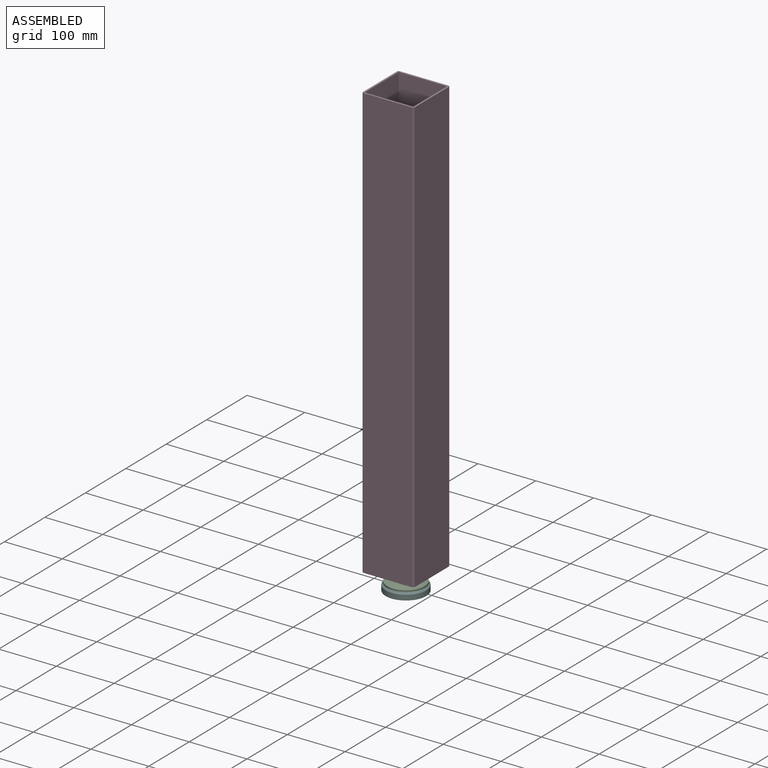
[diagram: assembled view]
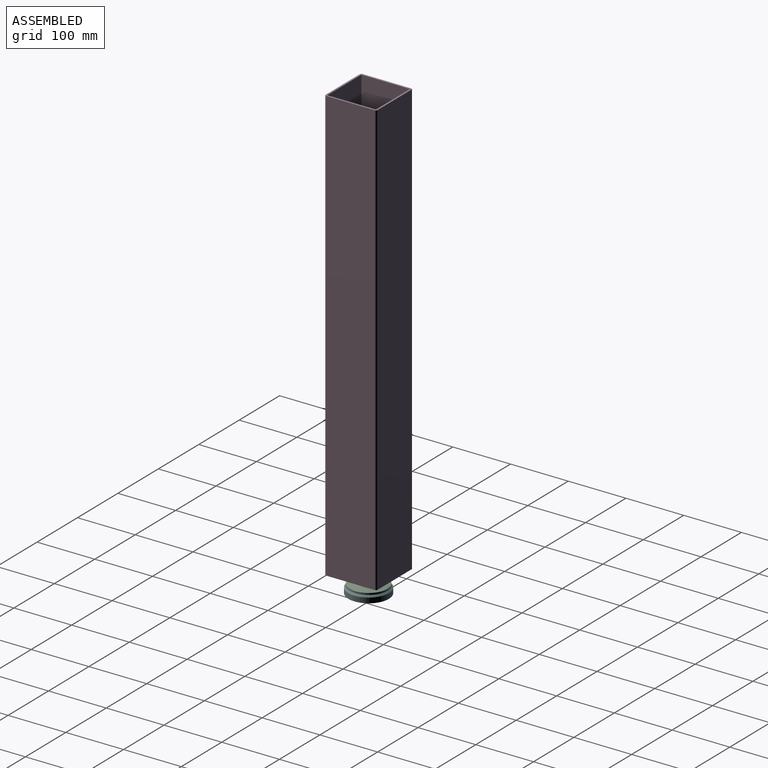
[diagram: assembled view, second angle]
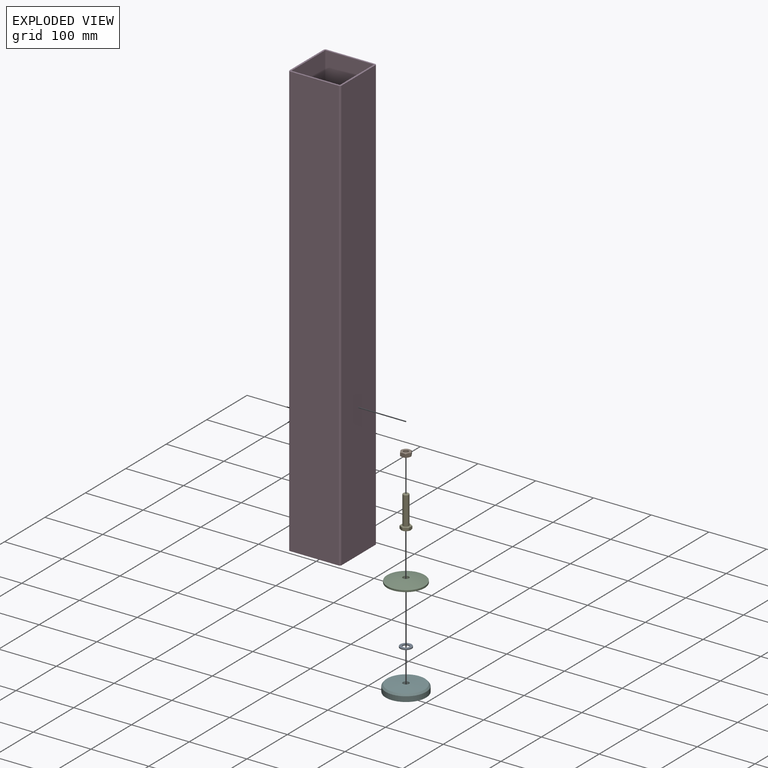
[diagram: exploded view]
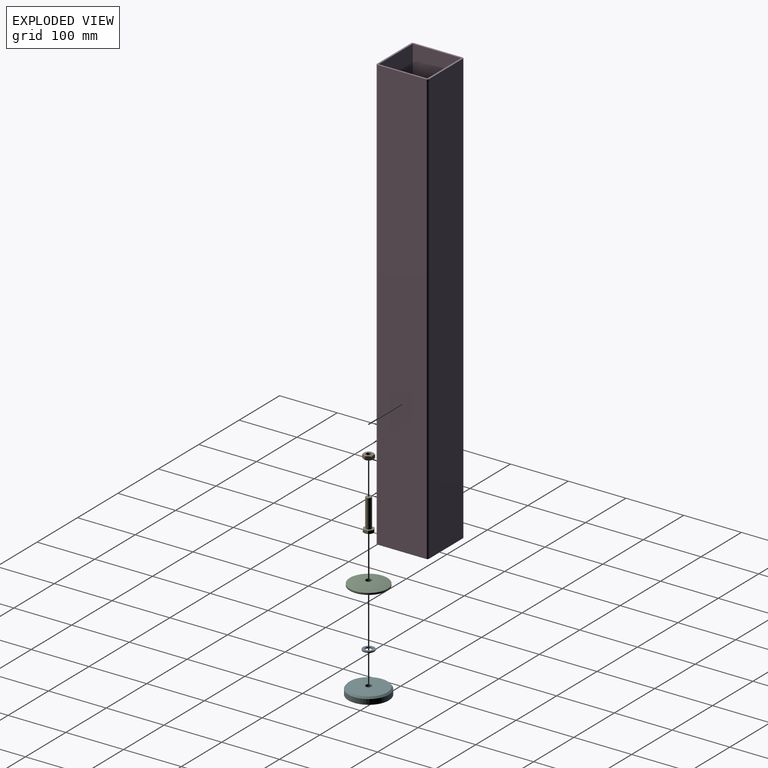
[diagram: exploded view, second angle]
ASSEMBLY  parts=6 mates=3
PART A: 4 faces, bbox 20x2x20 mm
  f0: plane 20x20mm, normal (0,-1,0), area 219.1mm2, adj f2,f3
  f1: plane 20x20mm, normal (0,1,0), area 219.1mm2, adj f2,f3
  f2: cylinder r=10mm len=20mm, axis (0,-1,0), area 125.7mm2, adj f0,f1
  f3: cylinder r=5.5mm len=11mm, axis (0,-1,0), area 69.1mm2, adj f0,f1
PART B: 13 faces, bbox 19.2x8.2x19.2 mm
  f0: cone r=7.3mm half-angle=60deg, axis (0,1,0), area 65mm2, adj f1,f2,f3,f4,f5,f6,f7
  f1: plane 14.6x14.6mm, normal (0,-1,0), area 88.9mm2, adj f0,f10
  f2: plane 8x6.6mm, normal (0.87,0,0.5), area 56.4mm2, adj f0,f3,f7,f8
  f3: plane 8x6.6mm, normal (0.87,0,-0.5), area 56.4mm2, adj f0,f2,f4,f8
  f4: plane 10.01x7.36mm, normal (0,0,-1), area 56.4mm2, adj f0,f3,f5,f8
  f5: plane 8x6.6mm, normal (-0.87,0,-0.5), area 56.4mm2, adj f0,f4,f6,f8
  f6: plane 8x6.6mm, normal (-0.87,0,0.5), area 56.4mm2, adj f0,f5,f7,f8
  f7: plane 10x7.36mm, normal (0,0,1), area 56.4mm2, adj f0,f2,f6,f8
  f8: cone r=9.24mm half-angle=60deg, axis (0,-1,0), area 65mm2, adj f2,f3,f4,f5,f6,f7,f9
  f9: plane 14.6x14.6mm, normal (0,1,0), area 88.9mm2, adj f8,f12
  f10: cone r=5mm half-angle=60deg, axis (0,-1,0), area 27.1mm2, adj f1,f11
  f11: cylinder r=4.19mm len=8.38mm, axis (0,-1,0), area 170.1mm2, adj f10,f12
  f12: cone r=4.19mm half-angle=60deg, axis (0,1,0), area 27.1mm2, adj f9,f11
PART C: 5 faces, bbox 65x65x8 mm
  f0: cone r=32.5mm half-angle=86.5deg, axis (0,0,-1), area 3237.8mm2, adj f1,f4
  f1: cylinder r=32.5mm len=65mm, axis (0,0,1), area 612.6mm2, adj f0,f3
  f2: plane 15x15mm, normal (0,0,1), area 90.1mm2, adj f3,f4
  f3: revolved ~65x65mm, area 3224.1mm2, adj f1,f2
  f4: cylinder r=5.25mm len=10.5mm, axis (0,0,-1), area 208.6mm2, adj f0,f2
PART D: 16 faces, bbox 90x90x751 mm
  f0: plane 90x90mm, normal (0,0,1), area 1036.3mm2, adj f1,f2,f3,f4,f6,f7,f8,f9
  f1: plane 751x84mm, normal (1,0,0), area 63084mm2, adj f0,f5,f6,f8
  f2: plane 751x84mm, normal (0,-1,0), area 63084mm2, adj f0,f5,f6,f7
  f3: plane 751x84mm, normal (-1,0,0), area 63084mm2, adj f0,f5,f7,f9
  f4: plane 751x84mm, normal (0,1,0), area 63084mm2, adj f0,f5,f8,f9
  f5: plane 90x90mm, normal (0,0,-1), area 8005.7mm2, adj f1,f2,f3,f4,f6,f7,f8,f9
  f6: cylinder r=3mm len=751mm, axis (0,0,1), area 3539mm2, adj f0,f1,f2,f5
  f7: cylinder r=3mm len=751mm, axis (0,0,-1), area 3539mm2, adj f0,f2,f3,f5
  f8: cylinder r=3mm len=751mm, axis (0,0,-1), area 3539mm2, adj f0,f1,f4,f5
  f9: cylinder r=3mm len=751mm, axis (0,0,1), area 3539mm2, adj f0,f3,f4,f5
  f10: plane 748x84mm, normal (-1,0,0), area 62832mm2, adj f0,f11,f13,f14
  f11: plane 748x84mm, normal (0,1,0), area 62832mm2, adj f0,f10,f12,f14
  f12: plane 748x84mm, normal (1,0,0), area 62832mm2, adj f0,f11,f13,f14
  f13: plane 748x84mm, normal (0,-1,0), area 62832mm2, adj f0,f10,f12,f14
  f14: plane 84x84mm, normal (0,0,1), area 6969.4mm2, adj f10,f11,f12,f13,f15
  f15: cylinder r=5.25mm len=10.5mm, axis (0,0,-1), area 99mm2, adj f5,f14
PART E: 20 faces, bbox 18.5x55.4x18.5 mm
  f0: cylinder r=5mm len=48.79mm, axis (0,1,0), area 1532.7mm2, adj f1,f19
  f1: torus R=5.4mm, axis (0,1,0), area 20.3mm2, adj f0,f2
  f2: plane 14.63x14.63mm, normal (0,-1,0), area 76.5mm2, adj f1,f3
  f3: cylinder r=7.32mm len=14.63mm, axis (0,1,0), area 6.9mm2, adj f2,f4
  f4: plane 18.48x16mm, normal (0,-1,0), area 53.6mm2, adj f3,f12,f13,f14,f15,f16,f17
  f5: cone r=9.24mm half-angle=60deg, axis (0,-1,0), area 4mm2, adj f10,f12,f13
  f6: cone r=9.24mm half-angle=60deg, axis (0,-1,0), area 4mm2, adj f10,f16,f17
  f7: cone r=9.24mm half-angle=60deg, axis (0,-1,0), area 4mm2, adj f10,f15,f16
  f8: cone r=9.24mm half-angle=60deg, axis (0,-1,0), area 4mm2, adj f10,f14,f15
  f9: cone r=9.24mm half-angle=60deg, axis (0,-1,0), area 4mm2, adj f10,f13,f14
  f10: plane 16x16mm, normal (0,1,0), area 201.1mm2, adj f5,f6,f7,f8,f9,f11
  f11: cone r=9.24mm half-angle=60deg, axis (0,-1,0), area 4mm2, adj f10,f12,f17
  f12: plane 8x5.25mm, normal (0.5,0,-0.87), area 46.2mm2, adj f4,f5,f11,f13,f17
  f13: plane 8x5.25mm, normal (-0.5,0,-0.87), area 46.2mm2, adj f4,f5,f9,f12,f14
  f14: plane 9.24x5.25mm, normal (-1,0,0), area 46.2mm2, adj f4,f8,f9,f13,f15
  f15: plane 8x5.25mm, normal (-0.5,0,0.87), area 46.2mm2, adj f4,f7,f8,f14,f16
  f16: plane 8x5.25mm, normal (0.5,0,0.87), area 46.2mm2, adj f4,f6,f7,f15,f17
  f17: plane 9.24x5.25mm, normal (1,0,0), area 46.2mm2, adj f4,f6,f11,f12,f16
  f18: plane 8.38x8.38mm, normal (0,-1,0), area 55.1mm2, adj f19
  f19: cone r=4.19mm half-angle=45deg, axis (0,1,0), area 33.1mm2, adj f0,f18
PART F: 7 faces, bbox 70x70x13.7 mm
  f0: cone r=32.5mm half-angle=86.5deg, axis (0,0,-1), area 3237.8mm2, adj f1,f4
  f1: cone r=35mm half-angle=39.8deg, axis (0,0,-1), area 828.1mm2, adj f0,f2
  f2: cylinder r=35mm len=70mm, axis (0,0,1), area 1979.2mm2, adj f1,f3
  f3: plane 70x70mm, normal (0,0,-1), area 3357.6mm2, adj f2,f6
  f4: cylinder r=5.25mm len=10.5mm, axis (0,0,-1), area 187.3mm2, adj f0,f5
  f5: plane 25x25mm, normal (0,0,-1), area 404.3mm2, adj f4,f6
  f6: cylinder r=12.5mm len=25mm, axis (0,0,-1), area 628.3mm2, adj f3,f5
PLACE A rot(axis=(-1,0,0),90deg) t=(-630,-306.5,6)mm
PLACE B rot(axis=(-1,0,0),90deg) t=(-630,-306.5,20)mm
PLACE C at identity
PLACE D at identity fixed
PLACE E rot(axis=(-1,0,0),90deg) t=(-630,-306.5,6)mm
PLACE F at identity
MATE fastened B.f11 <-> C.f0  axis (0,0,-1) through (-630,-306.5,20)mm
MATE fastened E.f0 <-> A.f2  axis (0,0,1) through (-630,-306.5,6)mm
MATE fastened A.f2 <-> F.f0  axis (0,0,1) through (-630,-306.5,8)mm
